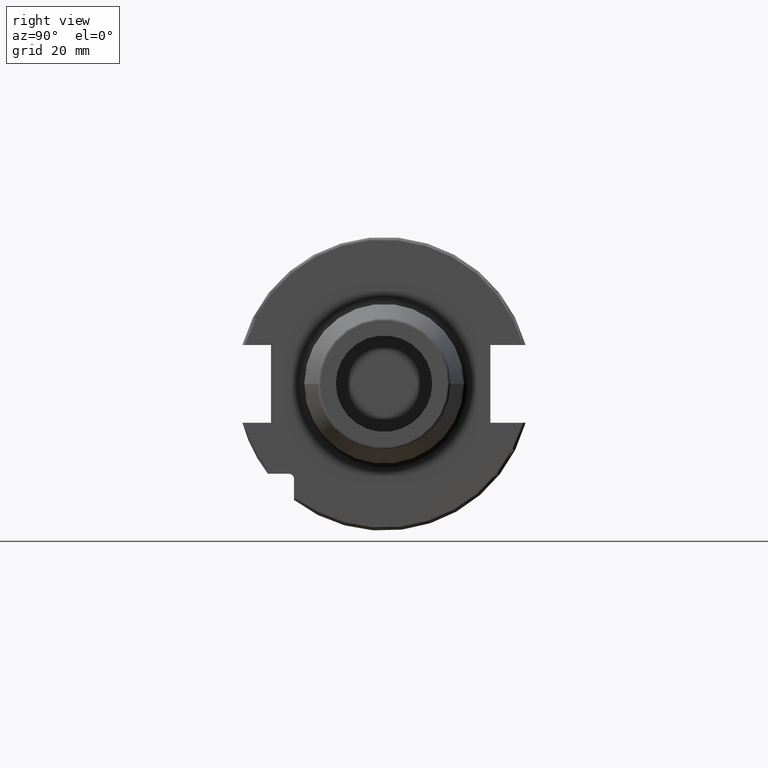
[diagram: clean part render]
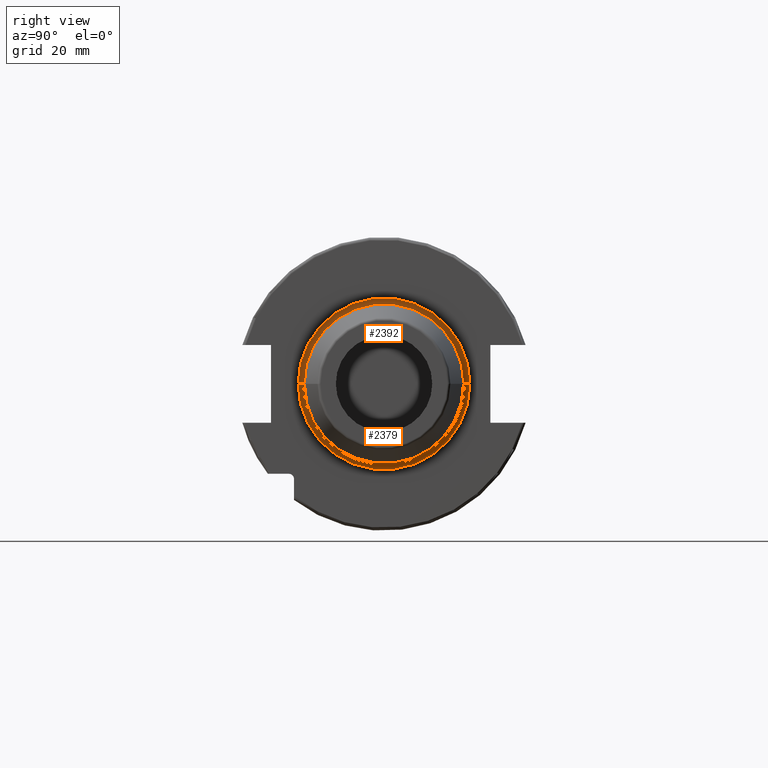
[diagram: same view with one multi-face feature highlighted, each face labeled with its STEP entity id]
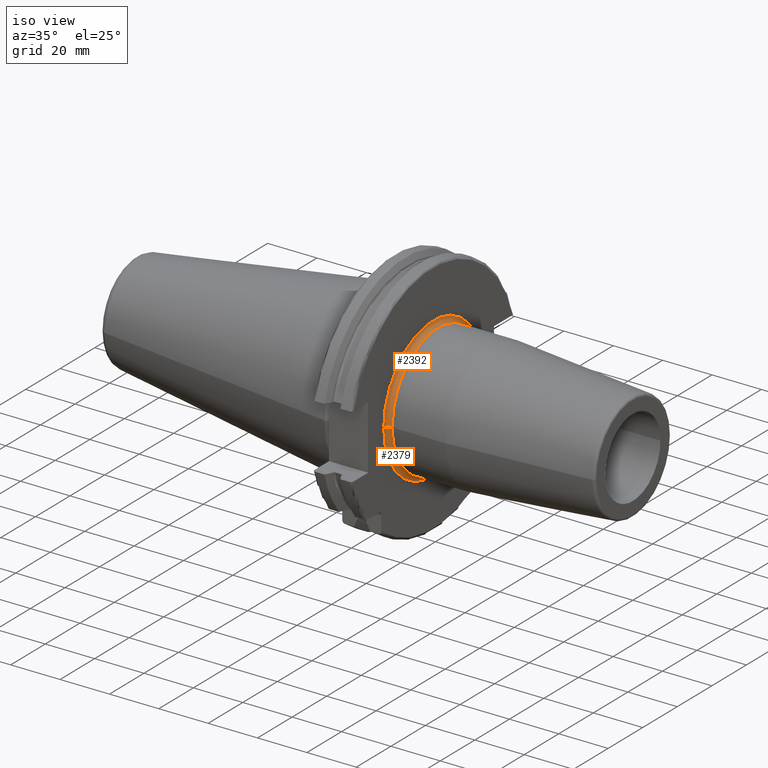
[diagram: same view with one multi-face feature highlighted, each face labeled with its STEP entity id]
A machine part, right view. The highlighted faces form ONE feature: a constant-radius fillet chain: 2 tangent blend faces with common blend radius 2 mm. The faces share edges in the B-rep.
A second angle (iso view) of the same feature is appended — it is thin or edge-on in the first view.
Their STEP definitions:
[1] entity #2379 (Torus):
#158=CARTESIAN_POINT('',(1.905E1,0.E0,0.E0));
#159=DIRECTION('',(1.E0,0.E0,0.E0));
#160=DIRECTION('',(0.E0,-1.E0,0.E0));
#161=AXIS2_PLACEMENT_3D('',#158,#159,#160);
#896=CARTESIAN_POINT('',(2.105E1,-2.85E1,3.269606807521E-14));
#897=DIRECTION('',(0.E0,0.E0,-1.E0));
#898=DIRECTION('',(-1.E0,1.421085471520E-14,0.E0));
#899=AXIS2_PLACEMENT_3D('',#896,#897,#898);
#901=CARTESIAN_POINT('',(2.105E1,2.85E1,-3.619327060278E-14));
#902=DIRECTION('',(0.E0,0.E0,1.E0));
#903=DIRECTION('',(-1.E0,-1.243449787580E-14,0.E0));
#904=AXIS2_PLACEMENT_3D('',#901,#902,#903);
#916=CARTESIAN_POINT('',(2.105E1,0.E0,0.E0));
#917=DIRECTION('',(1.E0,0.E0,0.E0));
#918=DIRECTION('',(0.E0,-1.E0,0.E0));
#919=AXIS2_PLACEMENT_3D('',#916,#917,#918);
#1444=CARTESIAN_POINT('',(1.905E1,-2.85E1,0.E0));
#1445=CARTESIAN_POINT('',(1.905E1,2.85E1,0.E0));
#1446=VERTEX_POINT('',#1444);
#1447=VERTEX_POINT('',#1445);
#1448=CARTESIAN_POINT('',(2.105E1,-2.65E1,0.E0));
#1449=CARTESIAN_POINT('',(2.105E1,2.65E1,0.E0));
#1450=VERTEX_POINT('',#1448);
#1451=VERTEX_POINT('',#1449);
#2365=CARTESIAN_POINT('',(2.105E1,0.E0,0.E0));
#2366=DIRECTION('',(1.E0,0.E0,0.E0));
#2367=DIRECTION('',(0.E0,-9.999831651609E-1,5.802533475943E-3));
#2368=AXIS2_PLACEMENT_3D('',#2365,#2366,#2367);
#2369=TOROIDAL_SURFACE('',#2368,2.85E1,2.E0);
#2370=ORIENTED_EDGE('',*,*,#1658,.F.);
#2372=ORIENTED_EDGE('',*,*,#2371,.T.);
#2374=ORIENTED_EDGE('',*,*,#2373,.T.);
#2376=ORIENTED_EDGE('',*,*,#2375,.F.);
#2377=EDGE_LOOP('',(#2370,#2372,#2374,#2376));
#2378=FACE_OUTER_BOUND('',#2377,.F.);
#2379=ADVANCED_FACE('',(#2378),#2369,.F.);
#162=CIRCLE('',#161,2.85E1);
#900=CIRCLE('',#899,2.E0);
#905=CIRCLE('',#904,2.E0);
#920=CIRCLE('',#919,2.65E1);
#1658=EDGE_CURVE('',#1446,#1447,#162,.T.);
#2371=EDGE_CURVE('',#1446,#1450,#900,.T.);
#2373=EDGE_CURVE('',#1450,#1451,#920,.T.);
#2375=EDGE_CURVE('',#1447,#1451,#905,.T.);
[2] entity #2392 (Torus):
#163=CARTESIAN_POINT('',(1.905E1,0.E0,0.E0));
#164=DIRECTION('',(1.E0,0.E0,0.E0));
#165=DIRECTION('',(0.E0,1.E0,0.E0));
#166=AXIS2_PLACEMENT_3D('',#163,#164,#165);
#896=CARTESIAN_POINT('',(2.105E1,-2.85E1,3.269606807521E-14));
#897=DIRECTION('',(0.E0,0.E0,-1.E0));
#898=DIRECTION('',(-1.E0,1.421085471520E-14,0.E0));
#899=AXIS2_PLACEMENT_3D('',#896,#897,#898);
#901=CARTESIAN_POINT('',(2.105E1,2.85E1,-3.619327060278E-14));
#902=DIRECTION('',(0.E0,0.E0,1.E0));
#903=DIRECTION('',(-1.E0,-1.243449787580E-14,0.E0));
#904=AXIS2_PLACEMENT_3D('',#901,#902,#903);
#906=CARTESIAN_POINT('',(2.105E1,0.E0,0.E0));
#907=DIRECTION('',(1.E0,0.E0,0.E0));
#908=DIRECTION('',(0.E0,1.E0,0.E0));
#909=AXIS2_PLACEMENT_3D('',#906,#907,#908);
#1444=CARTESIAN_POINT('',(1.905E1,-2.85E1,0.E0));
#1445=CARTESIAN_POINT('',(1.905E1,2.85E1,0.E0));
#1446=VERTEX_POINT('',#1444);
#1447=VERTEX_POINT('',#1445);
#1448=CARTESIAN_POINT('',(2.105E1,-2.65E1,0.E0));
#1449=CARTESIAN_POINT('',(2.105E1,2.65E1,0.E0));
#1450=VERTEX_POINT('',#1448);
#1451=VERTEX_POINT('',#1449);
#2380=CARTESIAN_POINT('',(2.105E1,0.E0,0.E0));
#2381=DIRECTION('',(1.E0,0.E0,0.E0));
#2382=DIRECTION('',(0.E0,9.999831651609E-1,-5.802533475944E-3));
#2383=AXIS2_PLACEMENT_3D('',#2380,#2381,#2382);
#2384=TOROIDAL_SURFACE('',#2383,2.85E1,2.E0);
#2385=ORIENTED_EDGE('',*,*,#1660,.F.);
#2386=ORIENTED_EDGE('',*,*,#2375,.T.);
#2388=ORIENTED_EDGE('',*,*,#2387,.T.);
#2389=ORIENTED_EDGE('',*,*,#2371,.F.);
#2390=EDGE_LOOP('',(#2385,#2386,#2388,#2389));
#2391=FACE_OUTER_BOUND('',#2390,.F.);
#2392=ADVANCED_FACE('',(#2391),#2384,.F.);
#167=CIRCLE('',#166,2.85E1);
#900=CIRCLE('',#899,2.E0);
#905=CIRCLE('',#904,2.E0);
#910=CIRCLE('',#909,2.65E1);
#1660=EDGE_CURVE('',#1447,#1446,#167,.T.);
#2371=EDGE_CURVE('',#1446,#1450,#900,.T.);
#2375=EDGE_CURVE('',#1447,#1451,#905,.T.);
#2387=EDGE_CURVE('',#1451,#1450,#910,.T.);